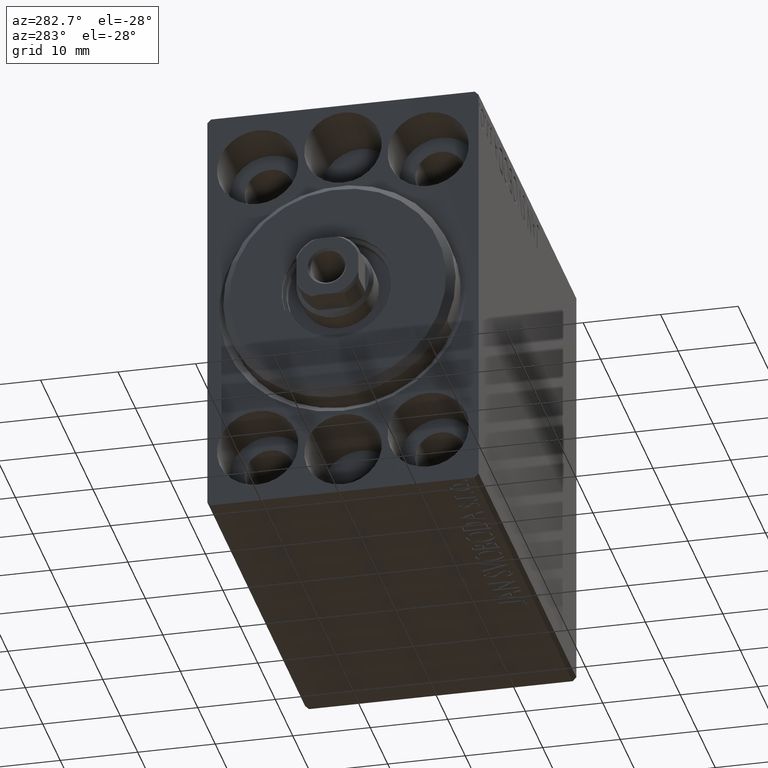
[diagram: clean part render]
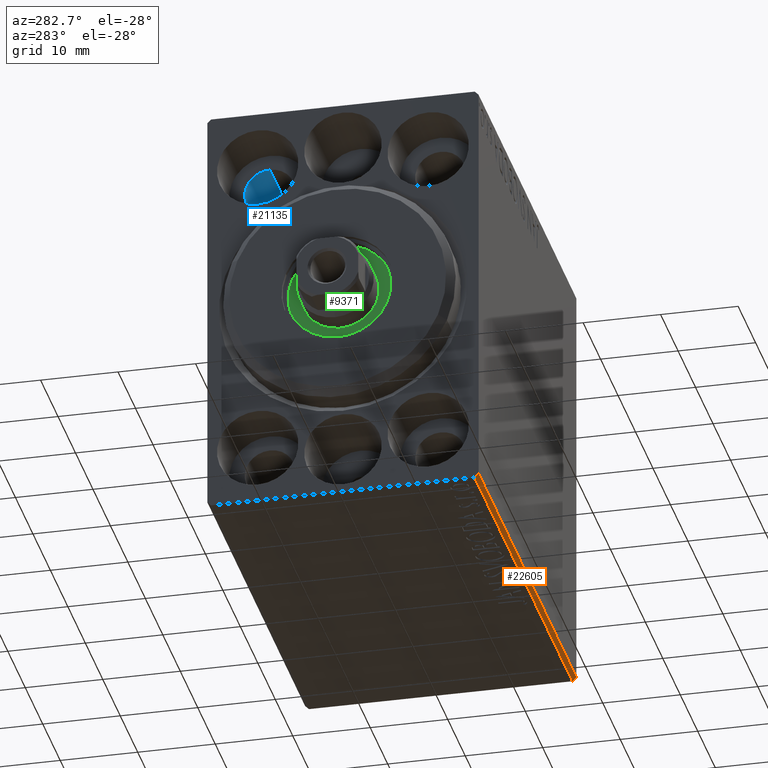
[diagram: same view with three faces highlighted in distinct colors, each labeled with its STEP entity id]
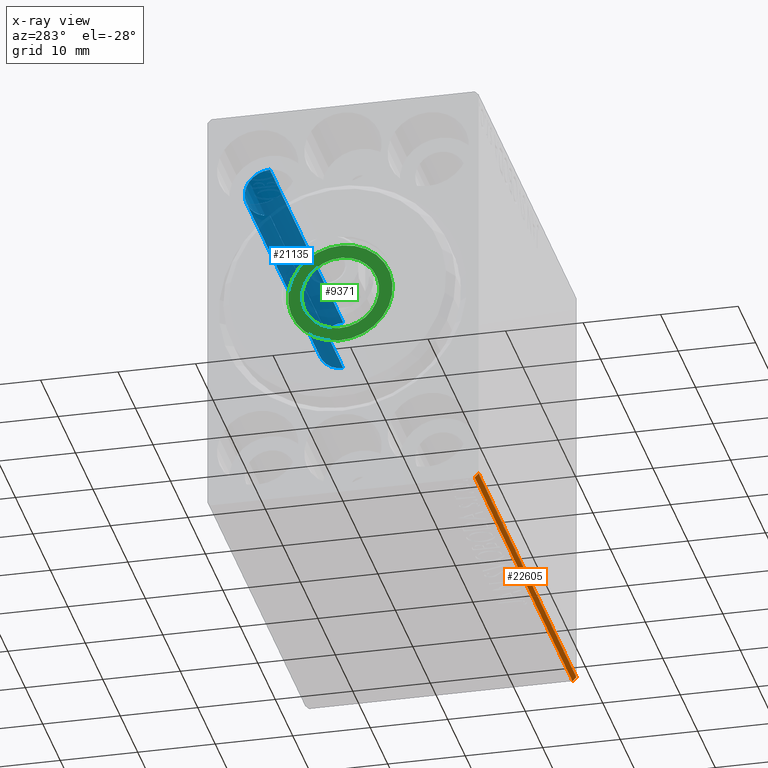
[diagram: x-ray of the same camera — body ghosted, the three highlighted faces saturated]
A machine part, auxiliary view with three faces highlighted in distinct colors.
The next image is the same camera in x-ray (body ghosted, the three faces saturated) — at least one of them is partly hidden behind the body in this view.
Their STEP definitions:

[orange] entity #22605 — the highlighted planar face has unit normal (0, 0.7071, 0.7071).
#412 = LINE ( 'NONE', #13945, #34956 ) ;
#2189 = EDGE_CURVE ( 'NONE', #40040, #14340, #35499, .T. ) ;
#2409 = VERTEX_POINT ( 'NONE', #30400 ) ;
#3541 = EDGE_CURVE ( 'NONE', #20285, #40040, #412, .T. ) ;
#4088 = EDGE_LOOP ( 'NONE', ( #22096, #12451, #40129, #30123 ) ) ;
#4489 = DIRECTION ( 'NONE',  ( -0.000000000000000000, -0.7071067811865474617, 0.7071067811865474617 ) ) ;
#6594 = DIRECTION ( 'NONE',  ( 0.000000000000000000, 0.7071067811865475727, 0.7071067811865475727 ) ) ;
#7045 = DIRECTION ( 'NONE',  ( -1.000000000000000000, -0.000000000000000000, 0.000000000000000000 ) ) ;
#7745 = CARTESIAN_POINT ( 'NONE',  ( 56.00000000000000000, -16.99999999999999289, -27.50000000000000355 ) ) ;
#8562 = CARTESIAN_POINT ( 'NONE',  ( 56.00000000000000000, -22.25000000000000355, -22.25000000000000355 ) ) ;
#9917 = PLANE ( 'NONE',  #13726 ) ;
#12451 = ORIENTED_EDGE ( 'NONE', *, *, #17769, .F. ) ;
#13726 = AXIS2_PLACEMENT_3D ( 'NONE', #27213, #6594, #7045 ) ;
#13945 = CARTESIAN_POINT ( 'NONE',  ( 56.00000000000000000, -16.99999999999999289, -27.50000000000000355 ) ) ;
#14340 = VERTEX_POINT ( 'NONE', #40166 ) ;
#15116 = CARTESIAN_POINT ( 'NONE',  ( 0.000000000000000000, -16.99999999999999289, -27.50000000000000355 ) ) ;
#15785 = CARTESIAN_POINT ( 'NONE',  ( 56.00000000000000000, -17.50000000000000000, -26.99999999999999645 ) ) ;
#16001 = DIRECTION ( 'NONE',  ( 1.000000000000000000, 0.000000000000000000, 0.000000000000000000 ) ) ;
#17769 = EDGE_CURVE ( 'NONE', #14340, #2409, #25769, .T. ) ;
#20285 = VERTEX_POINT ( 'NONE', #7745 ) ;
#21874 = LINE ( 'NONE', #8562, #25751 ) ;
#21880 = EDGE_CURVE ( 'NONE', #2409, #20285, #21874, .T. ) ;
#22096 = ORIENTED_EDGE ( 'NONE', *, *, #21880, .F. ) ;
#22605 = ADVANCED_FACE ( 'NONE', ( #30321 ), #9917, .F. ) ;
#25751 = VECTOR ( 'NONE', #32277, 1000.000000000000114 ) ;
#25769 = LINE ( 'NONE', #15785, #35209 ) ;
#27213 = CARTESIAN_POINT ( 'NONE',  ( 56.00000000000000000, -16.99999999999999289, -27.50000000000000355 ) ) ;
#27472 = DIRECTION ( 'NONE',  ( -1.000000000000000000, 0.000000000000000000, 0.000000000000000000 ) ) ;
#30123 = ORIENTED_EDGE ( 'NONE', *, *, #3541, .F. ) ;
#30321 = FACE_OUTER_BOUND ( 'NONE', #4088, .T. ) ;
#30400 = CARTESIAN_POINT ( 'NONE',  ( 56.00000000000000000, -17.50000000000000000, -26.99999999999999645 ) ) ;
#32277 = DIRECTION ( 'NONE',  ( -0.000000000000000000, 0.7071067811865474617, -0.7071067811865474617 ) ) ;
#34956 = VECTOR ( 'NONE', #27472, 1000.000000000000000 ) ;
#35209 = VECTOR ( 'NONE', #16001, 1000.000000000000000 ) ;
#35499 = LINE ( 'NONE', #15116, #43398 ) ;
#39643 = CARTESIAN_POINT ( 'NONE',  ( 0.000000000000000000, -16.99999999999999289, -27.50000000000000355 ) ) ;
#40040 = VERTEX_POINT ( 'NONE', #39643 ) ;
#40129 = ORIENTED_EDGE ( 'NONE', *, *, #2189, .F. ) ;
#40166 = CARTESIAN_POINT ( 'NONE',  ( 0.000000000000000000, -17.50000000000000000, -26.99999999999999645 ) ) ;
#43398 = VECTOR ( 'NONE', #4489, 1000.000000000000114 ) ;

[blue] entity #21135 — the highlighted cylindrical surface (edge-blend (fillet) strip) has radius 3.25 mm, axis along (-1, -0, -0).
#388 = CARTESIAN_POINT ( 'NONE',  ( 6.999999999999999112, 11.00000000000000355, 16.75000000000000000 ) ) ;
#1545 = DIRECTION ( 'NONE',  ( -1.000000000000000000, -0.000000000000000000, -0.000000000000000000 ) ) ;
#1849 = VECTOR ( 'NONE', #1545, 1000.000000000000000 ) ;
#5185 = ORIENTED_EDGE ( 'NONE', *, *, #29179, .F. ) ;
#8926 = FACE_OUTER_BOUND ( 'NONE', #12622, .T. ) ;
#9138 = DIRECTION ( 'NONE',  ( 0.000000000000000000, 0.000000000000000000, -1.000000000000000000 ) ) ;
#9366 = CYLINDRICAL_SURFACE ( 'NONE', #33520, 3.249999999999999556 ) ;
#10442 = EDGE_CURVE ( 'NONE', #15860, #16196, #11808, .T. ) ;
#11808 = CIRCLE ( 'NONE', #40075, 3.249999999999999556 ) ;
#12268 = EDGE_CURVE ( 'NONE', #38384, #15860, #21470, .T. ) ;
#12622 = EDGE_LOOP ( 'NONE', ( #5185, #15902, #22986, #18489 ) ) ;
#15860 = VERTEX_POINT ( 'NONE', #43659 ) ;
#15902 = ORIENTED_EDGE ( 'NONE', *, *, #17805, .F. ) ;
#16071 = CARTESIAN_POINT ( 'NONE',  ( 49.00000000000000000, 11.00000000000000355, 23.25000000000000000 ) ) ;
#16196 = VERTEX_POINT ( 'NONE', #388 ) ;
#17212 = DIRECTION ( 'NONE',  ( -1.000000000000000000, 0.000000000000000000, 0.000000000000000000 ) ) ;
#17805 = EDGE_CURVE ( 'NONE', #38384, #19699, #40862, .T. ) ;
#18145 = DIRECTION ( 'NONE',  ( -1.000000000000000000, -0.000000000000000000, -0.000000000000000000 ) ) ;
#18489 = ORIENTED_EDGE ( 'NONE', *, *, #10442, .T. ) ;
#19699 = VERTEX_POINT ( 'NONE', #34011 ) ;
#20361 = AXIS2_PLACEMENT_3D ( 'NONE', #42143, #35507, #9138 ) ;
#21135 = ADVANCED_FACE ( 'NONE', ( #8926 ), #9366, .F. ) ;
#21470 = LINE ( 'NONE', #34980, #40829 ) ;
#22900 = DIRECTION ( 'NONE',  ( -1.000000000000000000, -0.000000000000000000, -0.000000000000000000 ) ) ;
#22986 = ORIENTED_EDGE ( 'NONE', *, *, #12268, .T. ) ;
#23122 = DIRECTION ( 'NONE',  ( 0.000000000000000000, 0.000000000000000000, 1.000000000000000000 ) ) ;
#25284 = LINE ( 'NONE', #39000, #1849 ) ;
#29179 = EDGE_CURVE ( 'NONE', #19699, #16196, #25284, .T. ) ;
#30078 = CARTESIAN_POINT ( 'NONE',  ( 6.999999999999999112, 11.00000000000000355, 20.00000000000000000 ) ) ;
#33520 = AXIS2_PLACEMENT_3D ( 'NONE', #39066, #22900, #23122 ) ;
#34011 = CARTESIAN_POINT ( 'NONE',  ( 49.00000000000000000, 11.00000000000000355, 16.75000000000000000 ) ) ;
#34980 = CARTESIAN_POINT ( 'NONE',  ( 56.00000000000000000, 11.00000000000000355, 23.25000000000000000 ) ) ;
#35507 = DIRECTION ( 'NONE',  ( -1.000000000000000000, -0.000000000000000000, -0.000000000000000000 ) ) ;
#38384 = VERTEX_POINT ( 'NONE', #16071 ) ;
#39000 = CARTESIAN_POINT ( 'NONE',  ( 56.00000000000000000, 11.00000000000000355, 16.75000000000000000 ) ) ;
#39066 = CARTESIAN_POINT ( 'NONE',  ( 56.00000000000000000, 11.00000000000000355, 20.00000000000000000 ) ) ;
#40028 = DIRECTION ( 'NONE',  ( 0.000000000000000000, 0.000000000000000000, 1.000000000000000000 ) ) ;
#40075 = AXIS2_PLACEMENT_3D ( 'NONE', #30078, #17212, #40028 ) ;
#40829 = VECTOR ( 'NONE', #18145, 1000.000000000000000 ) ;
#40862 = CIRCLE ( 'NONE', #20361, 3.249999999999999556 ) ;
#42143 = CARTESIAN_POINT ( 'NONE',  ( 49.00000000000000000, 11.00000000000000355, 20.00000000000000000 ) ) ;
#43659 = CARTESIAN_POINT ( 'NONE',  ( 6.999999999999999112, 11.00000000000000355, 23.25000000000000000 ) ) ;

[green] entity #9371 — the highlighted planar face has unit normal (-1, 0, 0).
#301 = DIRECTION ( 'NONE',  ( 1.000000000000000000, 0.000000000000000000, 0.000000000000000000 ) ) ;
#351 = VERTEX_POINT ( 'NONE', #29580 ) ;
#359 = DIRECTION ( 'NONE',  ( 1.000000000000000000, 0.000000000000000000, 0.000000000000000000 ) ) ;
#613 = EDGE_CURVE ( 'NONE', #40755, #351, #21428, .T. ) ;
#1834 = AXIS2_PLACEMENT_3D ( 'NONE', #27242, #10382, #19498 ) ;
#2649 = AXIS2_PLACEMENT_3D ( 'NONE', #3426, #301, #26922 ) ;
#3426 = CARTESIAN_POINT ( 'NONE',  ( 1.499999999999999556, 0.000000000000000000, 0.000000000000000000 ) ) ;
#4870 = CARTESIAN_POINT ( 'NONE',  ( 1.500000000000000000, 0.000000000000000000, 0.000000000000000000 ) ) ;
#4905 = EDGE_LOOP ( 'NONE', ( #6160, #13637 ) ) ;
#6129 = VERTEX_POINT ( 'NONE', #10838 ) ;
#6160 = ORIENTED_EDGE ( 'NONE', *, *, #37629, .F. ) ;
#6589 = AXIS2_PLACEMENT_3D ( 'NONE', #4870, #28588, #35228 ) ;
#9371 = ADVANCED_FACE ( 'NONE', ( #19938, #36972 ), #13715, .T. ) ;
#10132 = EDGE_LOOP ( 'NONE', ( #13362, #13804 ) ) ;
#10382 = DIRECTION ( 'NONE',  ( 1.000000000000000000, 0.000000000000000000, 0.000000000000000000 ) ) ;
#10838 = CARTESIAN_POINT ( 'NONE',  ( 1.499999999999999556, 0.000000000000000000, -5.000000000000000000 ) ) ;
#13362 = ORIENTED_EDGE ( 'NONE', *, *, #29736, .T. ) ;
#13637 = ORIENTED_EDGE ( 'NONE', *, *, #17580, .F. ) ;
#13715 = PLANE ( 'NONE',  #1834 ) ;
#13804 = ORIENTED_EDGE ( 'NONE', *, *, #613, .T. ) ;
#13914 = AXIS2_PLACEMENT_3D ( 'NONE', #30732, #359, #23647 ) ;
#17580 = EDGE_CURVE ( 'NONE', #26125, #6129, #42993, .T. ) ;
#18228 = AXIS2_PLACEMENT_3D ( 'NONE', #35778, #39537, #29587 ) ;
#19498 = DIRECTION ( 'NONE',  ( 0.000000000000000000, 0.000000000000000000, -1.000000000000000000 ) ) ;
#19938 = FACE_BOUND ( 'NONE', #4905, .T. ) ;
#21428 = CIRCLE ( 'NONE', #6589, 6.750000000000000000 ) ;
#21697 = CIRCLE ( 'NONE', #13914, 6.750000000000000000 ) ;
#23647 = DIRECTION ( 'NONE',  ( 0.000000000000000000, 0.000000000000000000, -1.000000000000000000 ) ) ;
#26125 = VERTEX_POINT ( 'NONE', #29872 ) ;
#26922 = DIRECTION ( 'NONE',  ( 0.000000000000000000, 0.000000000000000000, -1.000000000000000000 ) ) ;
#27242 = CARTESIAN_POINT ( 'NONE',  ( 1.500000000000000000, 0.000000000000000000, 0.000000000000000000 ) ) ;
#28588 = DIRECTION ( 'NONE',  ( 1.000000000000000000, 0.000000000000000000, 0.000000000000000000 ) ) ;
#29580 = CARTESIAN_POINT ( 'NONE',  ( 1.500000000000000000, 0.000000000000000000, 6.750000000000000000 ) ) ;
#29587 = DIRECTION ( 'NONE',  ( 0.000000000000000000, 0.000000000000000000, -1.000000000000000000 ) ) ;
#29736 = EDGE_CURVE ( 'NONE', #351, #40755, #21697, .T. ) ;
#29872 = CARTESIAN_POINT ( 'NONE',  ( 1.499999999999999556, 6.123233995736765296E-16, 5.000000000000000000 ) ) ;
#30732 = CARTESIAN_POINT ( 'NONE',  ( 1.500000000000000000, 0.000000000000000000, 0.000000000000000000 ) ) ;
#35220 = CIRCLE ( 'NONE', #2649, 5.000000000000000000 ) ;
#35228 = DIRECTION ( 'NONE',  ( 0.000000000000000000, 0.000000000000000000, -1.000000000000000000 ) ) ;
#35778 = CARTESIAN_POINT ( 'NONE',  ( 1.499999999999999556, 0.000000000000000000, 0.000000000000000000 ) ) ;
#36972 = FACE_OUTER_BOUND ( 'NONE', #10132, .T. ) ;
#37629 = EDGE_CURVE ( 'NONE', #6129, #26125, #35220, .T. ) ;
#39537 = DIRECTION ( 'NONE',  ( 1.000000000000000000, 0.000000000000000000, 0.000000000000000000 ) ) ;
#40755 = VERTEX_POINT ( 'NONE', #43677 ) ;
#42993 = CIRCLE ( 'NONE', #18228, 5.000000000000000000 ) ;
#43677 = CARTESIAN_POINT ( 'NONE',  ( 1.500000000000000000, 8.266365894244632361E-16, -6.750000000000000000 ) ) ;